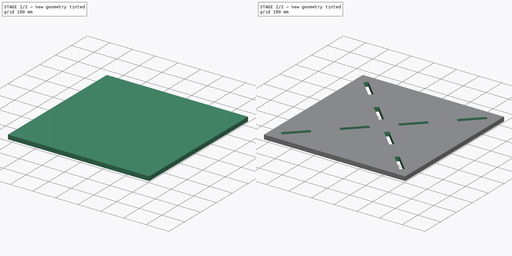
[diagram: build sequence overview — one tinted view per stage of 2, left to right]
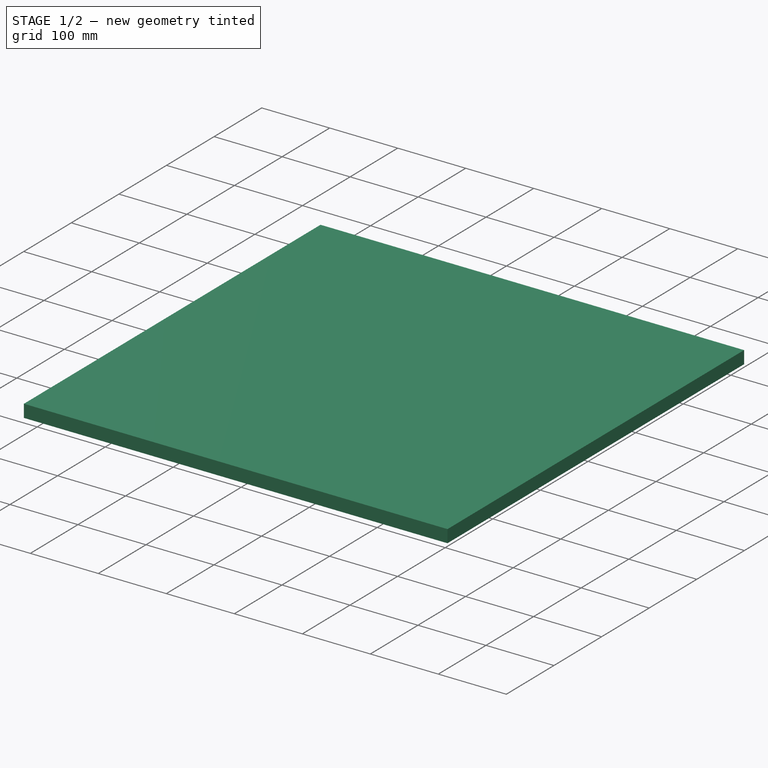
[diagram: stage 1 of 2 — iso view after this stage's code; geometry added in this stage tinted green]
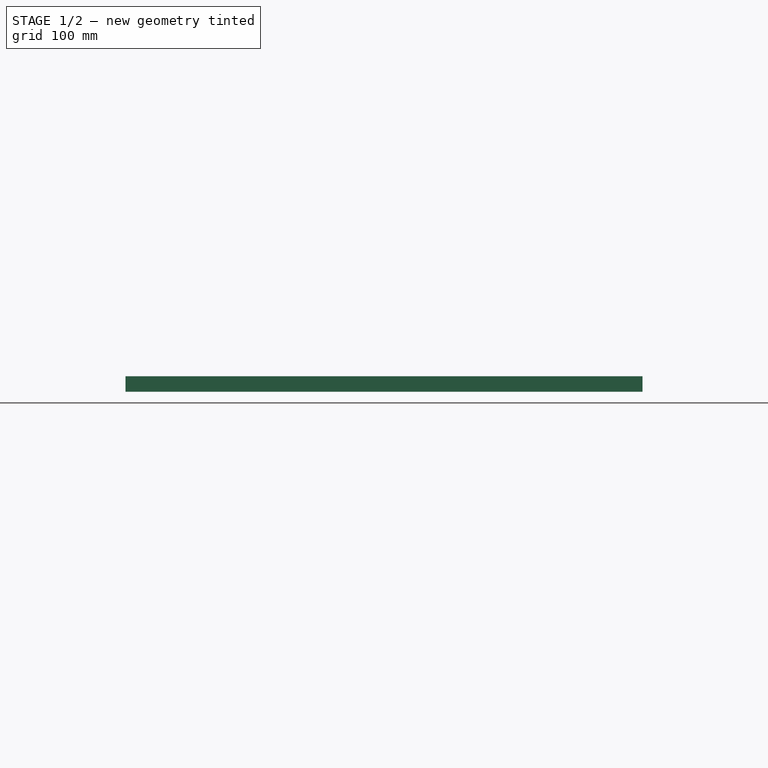
[diagram: stage 1 of 2 — front view after this stage's code; geometry added in this stage tinted green]
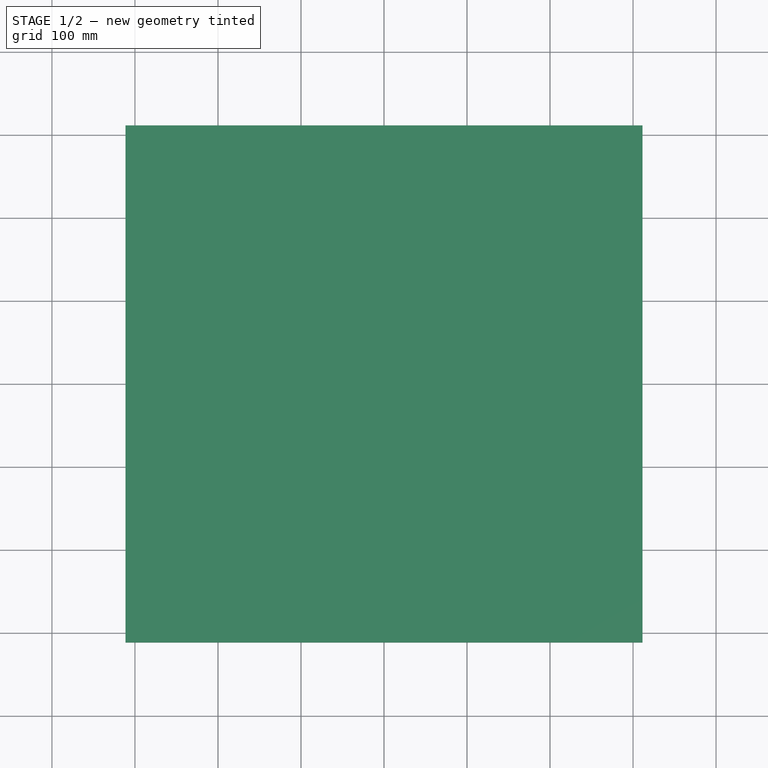
[diagram: stage 1 of 2 — top view after this stage's code; geometry added in this stage tinted green]
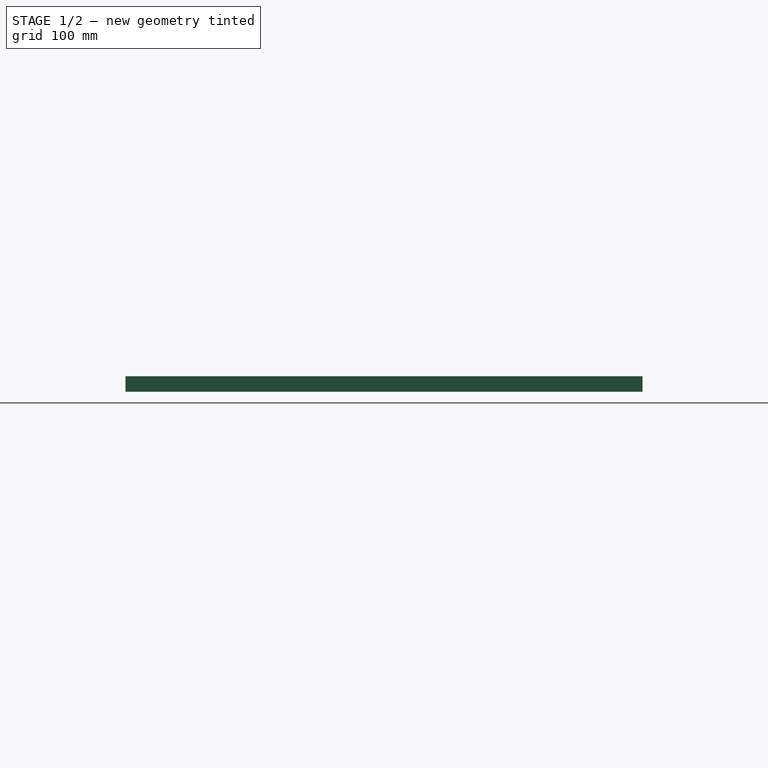
[diagram: stage 1 of 2 — right view after this stage's code; geometry added in this stage tinted green]
FCSTD DOCUMENT  (FreeCAD 0.19R24291 (Git))
Label: top_base
License: All rights reserved
LicenseURL: http://en.wikipedia.org/wiki/All_rights_reserved
objects: PartDesign::Pocket×2, App::Link×1, Sketcher::SketchObject×1, PartDesign::Pad×1, PartDesign::Mirrored×1, PartDesign::Body×1, App::Part×1
note: 9 computed .brp shape members not serialized (recipe doc carries the construction recipe); baked Part::Feature solids carry a one-line shape summary decoded from their .brp
EXTERNAL_REF file=cog_table.FCStd obj=Spreadsheet

FEATURE [App::Link] Link  label="param"
  LinkedObject = -> <external cog_table.FCStd>#Spreadsheet
FEATURE [Sketcher::SketchObject] Sketch
  FullyConstrained = true
  MapMode = 5
  Support = -> [XY_Plane001]
  expr: Constraints[61] = <<param>>.table_tab_length
  expr: Constraints[60] = <<param>>.material_thickness
  expr: Constraints[6] = <<param>>.table_width + <<param>>.material_thickness / sqrt(2)
  sketch-geometry (25):
    g0: LineSegment StartX=-311.445 StartY=311.445 StartZ=0 EndX=311.445 EndY=311.445 EndZ=0
    g1: LineSegment StartX=311.445 StartY=311.445 StartZ=0 EndX=311.445 EndY=-311.445 EndZ=0
    g2: LineSegment StartX=311.445 StartY=-311.445 StartZ=0 EndX=-311.445 EndY=-311.445 EndZ=0
    g3: LineSegment StartX=-311.445 StartY=-311.445 StartZ=0 EndX=-311.445 EndY=311.445 EndZ=0
    g4: LineSegment StartX=-311.445 StartY=-311.445 StartZ=0 EndX=311.445 EndY=311.445 EndZ=0
    g5: LineSegment StartX=311.445 StartY=-311.445 StartZ=0 EndX=-311.445 EndY=311.445 EndZ=0
    g6: LineSegment StartX=-260.055 StartY=-273.345 StartZ=0 EndX=-183.855 EndY=-197.145 EndZ=0
    g7: LineSegment StartX=-183.855 StartY=-197.145 StartZ=0 EndX=-197.145 EndY=-183.855 EndZ=0
    g8: LineSegment StartX=-197.145 StartY=-183.855 StartZ=0 EndX=-273.345 EndY=-260.055 EndZ=0
    g9: LineSegment StartX=-273.345 StartY=-260.055 StartZ=0 EndX=-260.055 EndY=-273.345 EndZ=0
    g10: LineSegment StartX=-120.945 StartY=-107.655 StartZ=0 EndX=-44.7454 EndY=-31.4546 EndZ=0
    g11: LineSegment StartX=-44.7454 StartY=-31.4546 StartZ=0 EndX=-31.4546 EndY=-44.7454 EndZ=0
    g12: LineSegment StartX=-31.4546 StartY=-44.7454 StartZ=0 EndX=-107.655 EndY=-120.945 EndZ=0
    g13: LineSegment StartX=-107.655 StartY=-120.945 StartZ=0 EndX=-120.945 EndY=-107.655 EndZ=0
    g14: LineSegment StartX=31.4546 StartY=44.7454 StartZ=0 EndX=107.655 EndY=120.945 EndZ=0
    g15: LineSegment StartX=107.655 StartY=120.945 StartZ=0 EndX=120.945 EndY=107.655 EndZ=0
    g16: LineSegment StartX=120.945 StartY=107.655 StartZ=0 EndX=44.7454 EndY=31.4546 EndZ=0
    g17: LineSegment StartX=44.7454 StartY=31.4546 StartZ=0 EndX=31.4546 EndY=44.7454 EndZ=0
    g18: LineSegment StartX=183.855 StartY=197.145 StartZ=0 EndX=197.145 EndY=183.855 EndZ=0
    g19: LineSegment StartX=197.145 StartY=183.855 StartZ=0 EndX=273.345 EndY=260.055 EndZ=0
    g20: LineSegment StartX=273.345 StartY=260.055 StartZ=0 EndX=260.055 EndY=273.345 EndZ=0
    g21: LineSegment StartX=260.055 StartY=273.345 StartZ=0 EndX=183.855 EndY=197.145 EndZ=0
    g22: LineSegment StartX=-197.145 StartY=-183.855 StartZ=0 EndX=-120.945 EndY=-107.655 EndZ=0
    g23: LineSegment StartX=-44.7454 StartY=-31.4546 StartZ=0 EndX=31.4546 EndY=44.7454 EndZ=0
    g24: LineSegment StartX=107.655 StartY=120.945 StartZ=0 EndX=183.855 EndY=197.145 EndZ=0
  constraints (62):
    c: Coincident(g0,g1)
    c: Coincident(g1,g2)
    c: Coincident(g2,g3)
    c: Coincident(g3,g0)
    c: Horizontal(g0)
    c: Vertical(g1)
    c: Distance(g0) = 622.891
    c: Equal(g3,g0)
    c: Coincident(g4,g2)
    c: Coincident(g4,g0)
    c: Coincident(g5,g1)
    c: Coincident(g5,g0)
    c: Equal(g5,g4)
    c: PointOnObject(g-1,g5)
    c: PointOnObject(g-1,g4)
    c: Equal(g2,g0)
    c: Coincident(g6,g7)
    c: Coincident(g7,g8)
    c: Coincident(g8,g9)
    c: Coincident(g9,g6)
    c: Coincident(g10,g11)
    c: Coincident(g11,g12)
    c: Coincident(g12,g13)
    c: Coincident(g13,g10)
    c: Coincident(g14,g15)
    c: Coincident(g15,g16)
    c: Coincident(g16,g17)
    c: Coincident(g17,g14)
    c: Parallel(g9,g7)
    c: Parallel(g7,g13)
    c: Parallel(g13,g11)
    c: Parallel(g11,g17)
    c: Parallel(g17,g15)
    c: Parallel(g10,g16)
    c: Equal(g8,g10)
    c: Equal(g8,g14)
    c: Tangent(g8,g10)
    c: Tangent(g8,g14)
    c: Tangent(g6,g12)
    c: Tangent(g6,g16)
    c: Coincident(g19,g18)
    c: Coincident(g20,g19)
    c: Coincident(g21,g20)
    c: Coincident(g21,g18)
    c: Tangent(g8,g21)
    c: Tangent(g6,g19)
    c: Parallel(g18,g20)
    c: Parallel(g18,g15)
    c: Symmetric(g6,g8,g4)
    c: Equal(g8,g21)
    c: Coincident(g22,g7)
    c: Coincident(g22,g10)
    c: Coincident(g23,g10)
    c: Coincident(g23,g14)
    c: Coincident(g24,g14)
    c: Coincident(g24,g18)
    c: Equal(g8,g22)
    c: Equal(g22,g23)
    c: Equal(g23,g24)
    c: Symmetric(g10,g14,g5)
    c: Distance(g9) = 18.796
    c: Distance(g8) = 107.763
FEATURE [PartDesign::Pad] Pad
  Direction = (1,1,1)
  Length = 18.796
  Length2 = 100
  Profile = -> Sketch
  Type = 0
  expr: Length = <<param>>.material_thickness
FEATURE [PartDesign::Mirrored] Mirrored
  BaseFeature = -> Pad
  MirrorPlane = -> Sketch [V_Axis]
  Originals = -> [Pad]
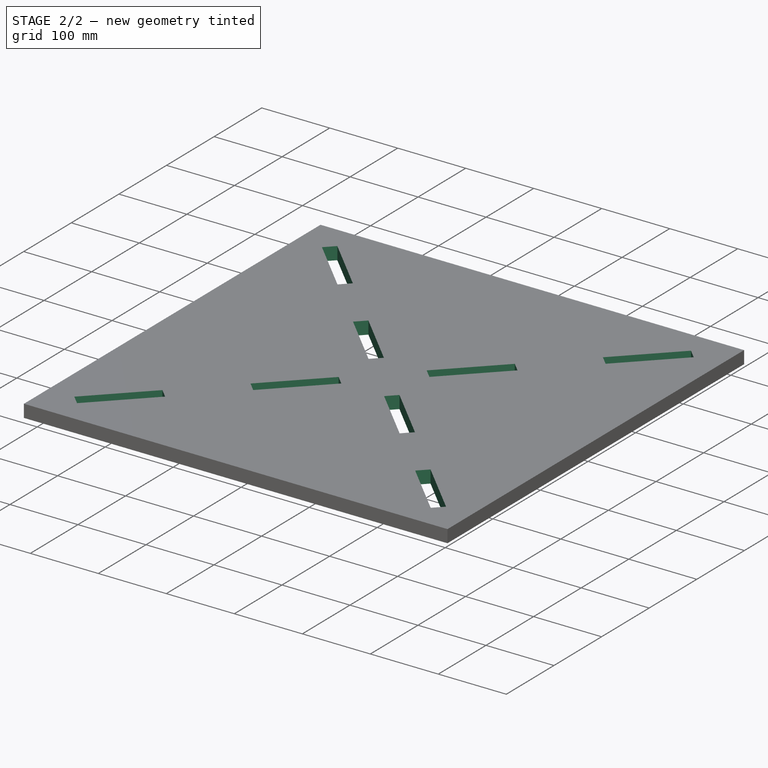
[diagram: stage 2 of 2 — iso view after this stage's code; geometry added in this stage tinted green]
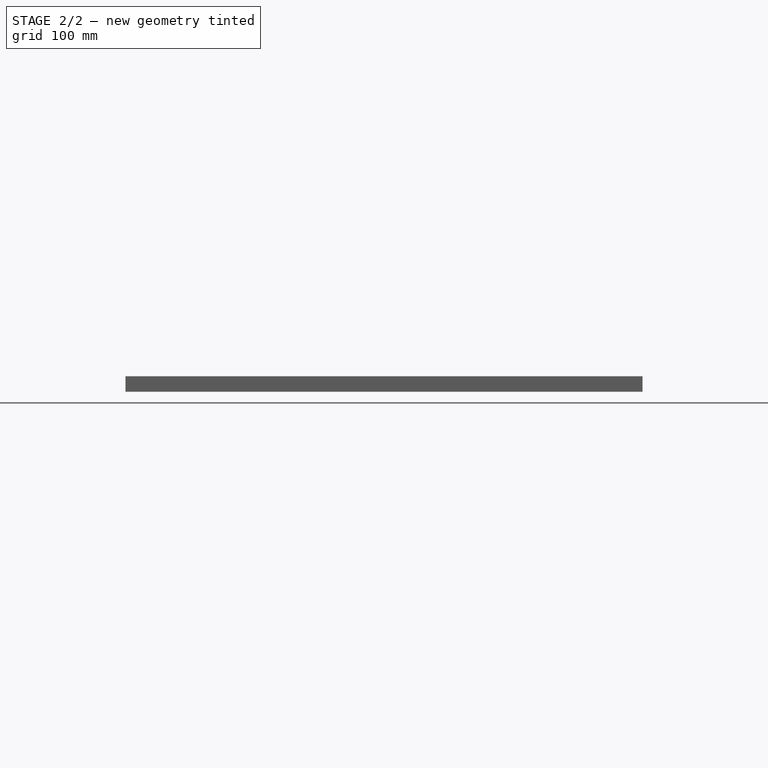
[diagram: stage 2 of 2 — front view after this stage's code; geometry added in this stage tinted green]
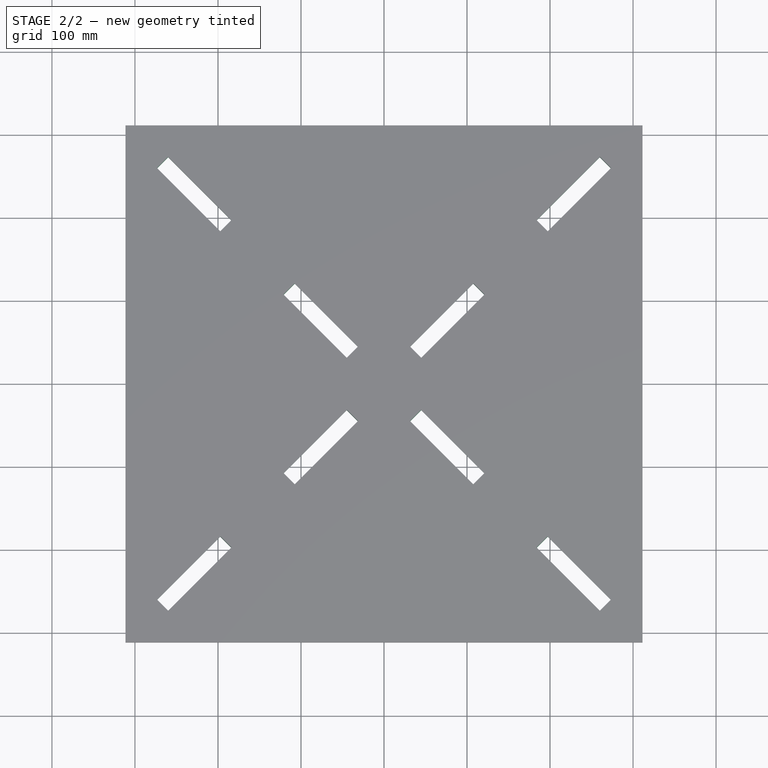
[diagram: stage 2 of 2 — top view after this stage's code; geometry added in this stage tinted green]
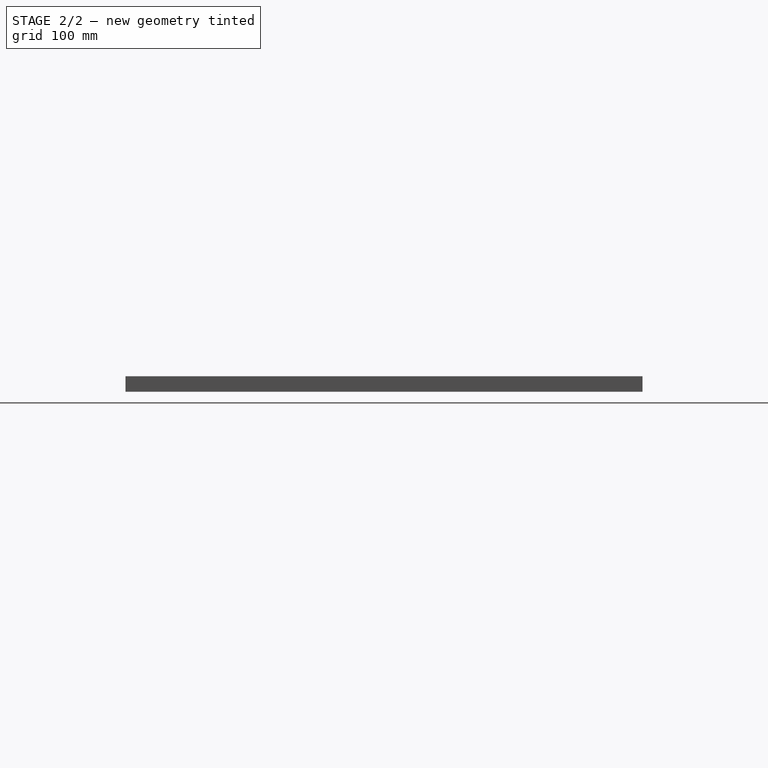
[diagram: stage 2 of 2 — right view after this stage's code; geometry added in this stage tinted green]
FEATURE [PartDesign::Pocket] Pocket
  BaseFeature = -> Mirrored
  Length = 5
  Length2 = 100
  Profile = -> Mirrored [Face22]
  Type = 1
FEATURE [PartDesign::Pocket] Pocket001
  BaseFeature = -> Pocket
  Length = 5
  Length2 = 100
  Profile = -> Pocket [Face24,Face19,Face18,Face22,Face23,Face21,Face20]
  Type = 1
FEATURE [PartDesign::Body] Body
  Group = -> [Sketch,Pad,Mirrored,Pocket,Pocket001]
  Origin = -> Origin001
  Tip = -> Pocket001
FEATURE [App::Part] Part
  Group = -> [Body]
  Origin = -> Origin
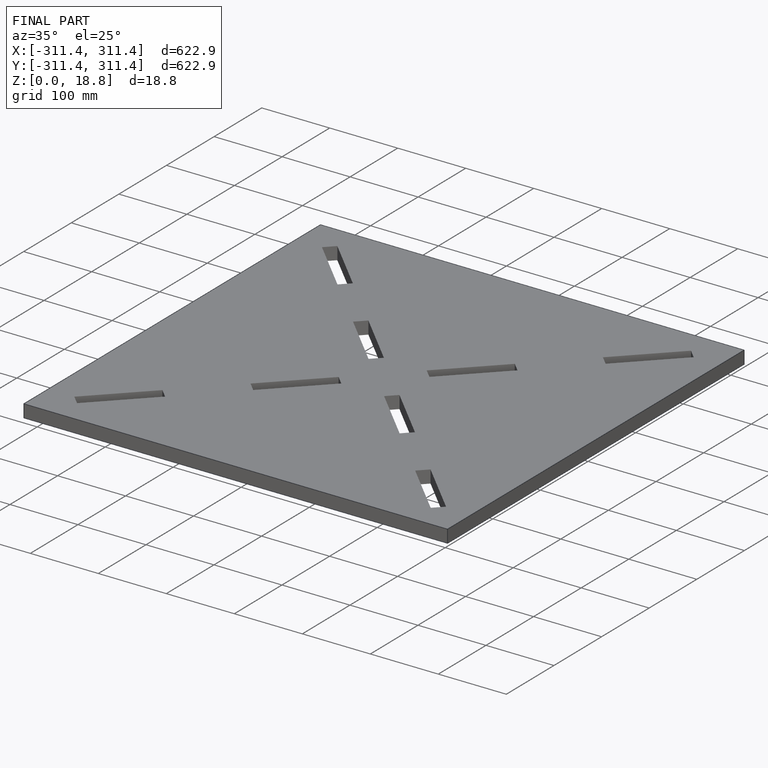
[diagram: finished part — iso view with bounding-box wireframe]
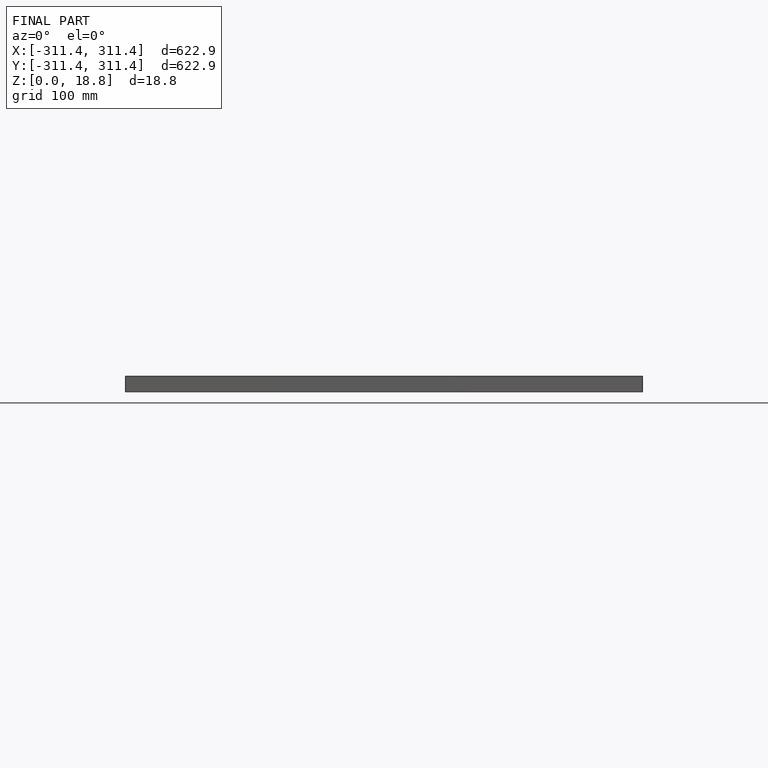
[diagram: finished part — front view with bounding-box wireframe]
